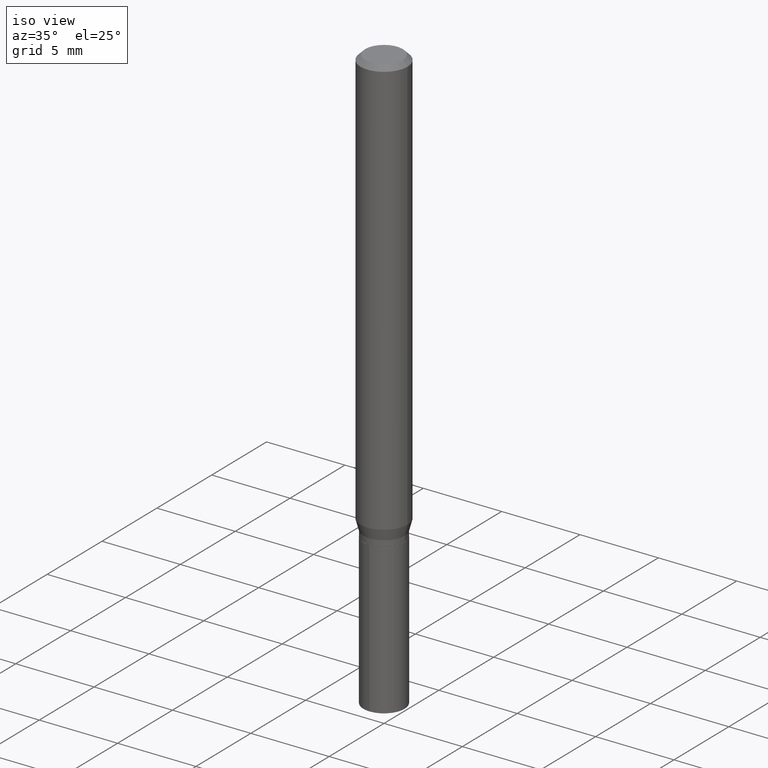
[diagram: clean part render]
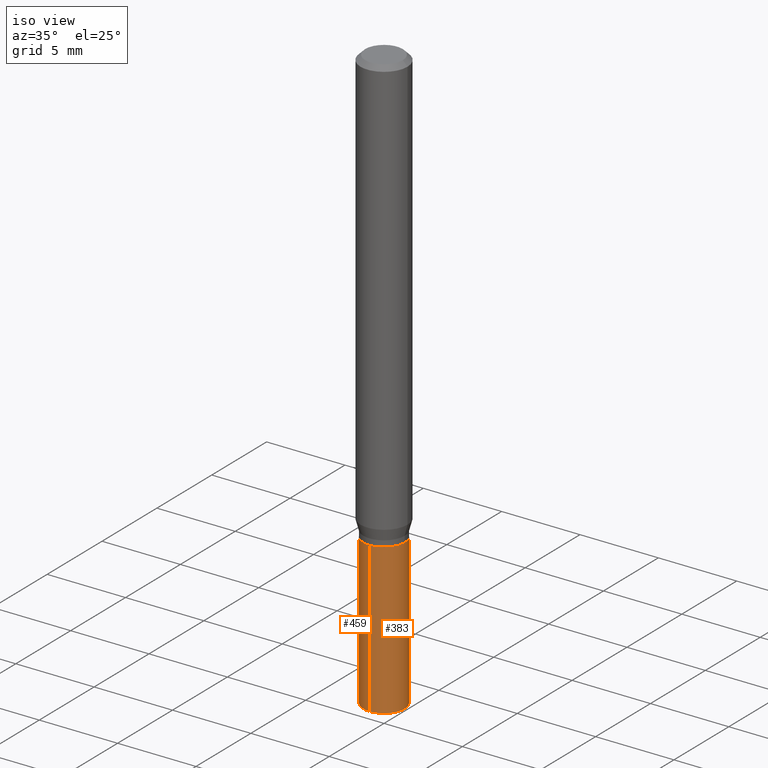
[diagram: same view with one multi-face feature highlighted, each face labeled with its STEP entity id]
A machine part, iso view. The highlighted faces form ONE feature: a constant-radius fillet chain: 2 tangent blend faces with common blend radius 1.3145 mm. The faces share edges in the B-rep.
Their STEP definitions:
[1] entity #383 (Cylinder):
#23 = LINE ( 'NONE', #336, #245 ) ;
#27 = ORIENTED_EDGE ( 'NONE', *, *, #289, .F. ) ;
#50 = VERTEX_POINT ( 'NONE', #173 ) ;
#52 = DIRECTION ( 'NONE',  ( -2.445458899330790108E-29, 3.491495526022433205E-15, 1.000000000000000000 ) ) ;
#59 = DIRECTION ( 'NONE',  ( -2.445458899330790108E-29, 3.491495526022433599E-15, 1.000000000000000000 ) ) ;
#67 = CARTESIAN_POINT ( 'NONE',  ( -3.613683185702283618E-16, -0.05175000000000515993, -1.471968578690478591 ) ) ;
#71 = CIRCLE ( 'NONE', #438, 0.05175000000000000433 ) ;
#75 = CARTESIAN_POINT ( 'NONE',  ( 3.677058657558878194E-16, 0.05174999999999617406, -1.094500000000000028 ) ) ;
#86 = ORIENTED_EDGE ( 'NONE', *, *, #129, .T. ) ;
#88 = VERTEX_POINT ( 'NONE', #297 ) ;
#92 = CIRCLE ( 'NONE', #368, 0.05175000000000000433 ) ;
#97 = VERTEX_POINT ( 'NONE', #67 ) ;
#118 = EDGE_CURVE ( 'NONE', #50, #186, #71, .T. ) ;
#129 = EDGE_CURVE ( 'NONE', #97, #88, #92, .T. ) ;
#140 = AXIS2_PLACEMENT_3D ( 'NONE', #224, #354, #268 ) ;
#145 = ORIENTED_EDGE ( 'NONE', *, *, #118, .F. ) ;
#146 = CARTESIAN_POINT ( 'NONE',  ( 2.676565608369631794E-29, -3.821426325363822773E-15, -1.094499999999999806 ) ) ;
#157 = ORIENTED_EDGE ( 'NONE', *, *, #446, .T. ) ;
#173 = CARTESIAN_POINT ( 'NONE',  ( -3.613683185702375323E-16, -0.05175000000000382766, -1.094499999999999806 ) ) ;
#186 = VERTEX_POINT ( 'NONE', #75 ) ;
#190 = DIRECTION ( 'NONE',  ( -2.445458899330790108E-29, 3.491495526022433205E-15, 1.000000000000000000 ) ) ;
#224 = CARTESIAN_POINT ( 'NONE',  ( 2.676565608369631794E-29, -3.821426325363822773E-15, -1.094499999999999806 ) ) ;
#240 = EDGE_LOOP ( 'NONE', ( #86, #157, #145, #27 ) ) ;
#245 = VECTOR ( 'NONE', #59, 39.37007874015748143 ) ;
#268 = DIRECTION ( 'NONE',  ( -6.982962677686265133E-15, -1.000000000000000000, 2.639466660545181459E-15 ) ) ;
#289 = EDGE_CURVE ( 'NONE', #97, #50, #458, .T. ) ;
#297 = CARTESIAN_POINT ( 'NONE',  ( 3.677058657558878687E-16, 0.05174999999999486955, -1.471968578690479257 ) ) ;
#309 = CYLINDRICAL_SURFACE ( 'NONE', #140, 0.05175000000000000433 ) ;
#336 = CARTESIAN_POINT ( 'NONE',  ( 3.677058657558785503E-16, 0.05174999999999617406, -1.094500000000000028 ) ) ;
#354 = DIRECTION ( 'NONE',  ( -2.445458899330790108E-29, 3.491495526022433205E-15, 1.000000000000000000 ) ) ;
#368 = AXIS2_PLACEMENT_3D ( 'NONE', #430, #190, #389 ) ;
#371 = DIRECTION ( 'NONE',  ( -2.445458899330790108E-29, 3.491495526022433599E-15, 1.000000000000000000 ) ) ;
#383 = ADVANCED_FACE ( 'NONE', ( #404 ), #309, .T. ) ;
#389 = DIRECTION ( 'NONE',  ( -6.982962677686265133E-15, -1.000000000000000000, 5.278933321090362918E-15 ) ) ;
#404 = FACE_OUTER_BOUND ( 'NONE', #240, .T. ) ;
#407 = CARTESIAN_POINT ( 'NONE',  ( -3.613683185702375323E-16, -0.05175000000000382766, -1.094499999999999806 ) ) ;
#430 = CARTESIAN_POINT ( 'NONE',  ( 3.599649503346007768E-29, -5.139356179075677332E-15, -1.471968578690479035 ) ) ;
#438 = AXIS2_PLACEMENT_3D ( 'NONE', #146, #52, #461 ) ;
#446 = EDGE_CURVE ( 'NONE', #88, #186, #23, .T. ) ;
#458 = LINE ( 'NONE', #407, #465 ) ;
#461 = DIRECTION ( 'NONE',  ( -6.982962677686265133E-15, -1.000000000000000000, 2.639466660545181459E-15 ) ) ;
#465 = VECTOR ( 'NONE', #371, 39.37007874015748143 ) ;
[2] entity #459 (Cylinder):
#18 = CYLINDRICAL_SURFACE ( 'NONE', #396, 0.05175000000000000433 ) ;
#23 = LINE ( 'NONE', #336, #245 ) ;
#24 = EDGE_LOOP ( 'NONE', ( #167, #267, #463, #305 ) ) ;
#26 = CARTESIAN_POINT ( 'NONE',  ( 2.676565608369631794E-29, -3.821426325363822773E-15, -1.094499999999999806 ) ) ;
#50 = VERTEX_POINT ( 'NONE', #173 ) ;
#51 = EDGE_CURVE ( 'NONE', #186, #50, #203, .T. ) ;
#53 = DIRECTION ( 'NONE',  ( -2.445458899330790108E-29, 3.491495526022433205E-15, 1.000000000000000000 ) ) ;
#59 = DIRECTION ( 'NONE',  ( -2.445458899330790108E-29, 3.491495526022433599E-15, 1.000000000000000000 ) ) ;
#60 = DIRECTION ( 'NONE',  ( -2.445458899330790108E-29, 3.491495526022433205E-15, 1.000000000000000000 ) ) ;
#63 = DIRECTION ( 'NONE',  ( -6.982962677686265133E-15, -1.000000000000000000, 2.639466660545181459E-15 ) ) ;
#67 = CARTESIAN_POINT ( 'NONE',  ( -3.613683185702283618E-16, -0.05175000000000515993, -1.471968578690478591 ) ) ;
#75 = CARTESIAN_POINT ( 'NONE',  ( 3.677058657558878194E-16, 0.05174999999999617406, -1.094500000000000028 ) ) ;
#88 = VERTEX_POINT ( 'NONE', #297 ) ;
#97 = VERTEX_POINT ( 'NONE', #67 ) ;
#135 = FACE_OUTER_BOUND ( 'NONE', #24, .T. ) ;
#154 = AXIS2_PLACEMENT_3D ( 'NONE', #475, #60, #164 ) ;
#164 = DIRECTION ( 'NONE',  ( -6.982962677686265133E-15, -1.000000000000000000, 5.278933321090362918E-15 ) ) ;
#165 = DIRECTION ( 'NONE',  ( -2.445458899330790108E-29, 3.491495526022433205E-15, 1.000000000000000000 ) ) ;
#167 = ORIENTED_EDGE ( 'NONE', *, *, #446, .F. ) ;
#173 = CARTESIAN_POINT ( 'NONE',  ( -3.613683185702375323E-16, -0.05175000000000382766, -1.094499999999999806 ) ) ;
#186 = VERTEX_POINT ( 'NONE', #75 ) ;
#203 = CIRCLE ( 'NONE', #244, 0.05175000000000000433 ) ;
#244 = AXIS2_PLACEMENT_3D ( 'NONE', #26, #165, #63 ) ;
#245 = VECTOR ( 'NONE', #59, 39.37007874015748143 ) ;
#267 = ORIENTED_EDGE ( 'NONE', *, *, #452, .T. ) ;
#283 = CARTESIAN_POINT ( 'NONE',  ( 2.676565608369631794E-29, -3.821426325363822773E-15, -1.094499999999999806 ) ) ;
#289 = EDGE_CURVE ( 'NONE', #97, #50, #458, .T. ) ;
#297 = CARTESIAN_POINT ( 'NONE',  ( 3.677058657558878687E-16, 0.05174999999999486955, -1.471968578690479257 ) ) ;
#305 = ORIENTED_EDGE ( 'NONE', *, *, #51, .F. ) ;
#336 = CARTESIAN_POINT ( 'NONE',  ( 3.677058657558785503E-16, 0.05174999999999617406, -1.094500000000000028 ) ) ;
#361 = CIRCLE ( 'NONE', #154, 0.05175000000000000433 ) ;
#371 = DIRECTION ( 'NONE',  ( -2.445458899330790108E-29, 3.491495526022433599E-15, 1.000000000000000000 ) ) ;
#396 = AXIS2_PLACEMENT_3D ( 'NONE', #283, #53, #473 ) ;
#407 = CARTESIAN_POINT ( 'NONE',  ( -3.613683185702375323E-16, -0.05175000000000382766, -1.094499999999999806 ) ) ;
#446 = EDGE_CURVE ( 'NONE', #88, #186, #23, .T. ) ;
#452 = EDGE_CURVE ( 'NONE', #88, #97, #361, .T. ) ;
#458 = LINE ( 'NONE', #407, #465 ) ;
#459 = ADVANCED_FACE ( 'NONE', ( #135 ), #18, .T. ) ;
#463 = ORIENTED_EDGE ( 'NONE', *, *, #289, .T. ) ;
#465 = VECTOR ( 'NONE', #371, 39.37007874015748143 ) ;
#473 = DIRECTION ( 'NONE',  ( -6.982962677686265133E-15, -1.000000000000000000, 2.639466660545181459E-15 ) ) ;
#475 = CARTESIAN_POINT ( 'NONE',  ( 3.599649503346007768E-29, -5.139356179075677332E-15, -1.471968578690479035 ) ) ;